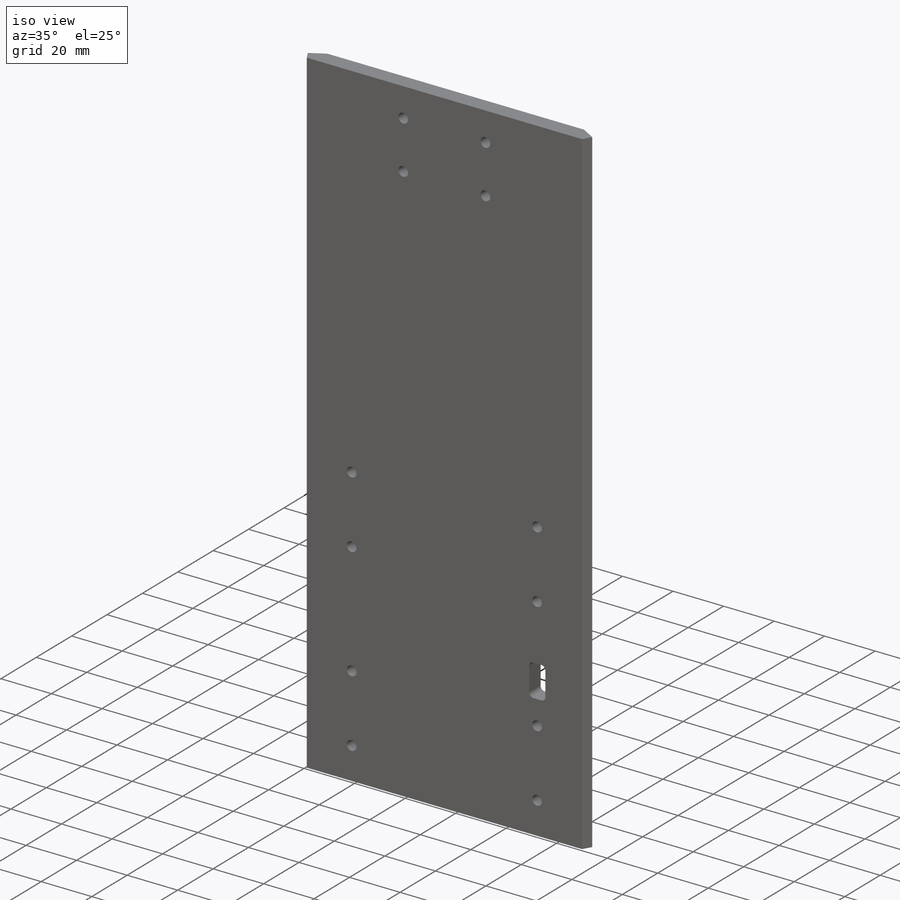
[diagram: iso view]
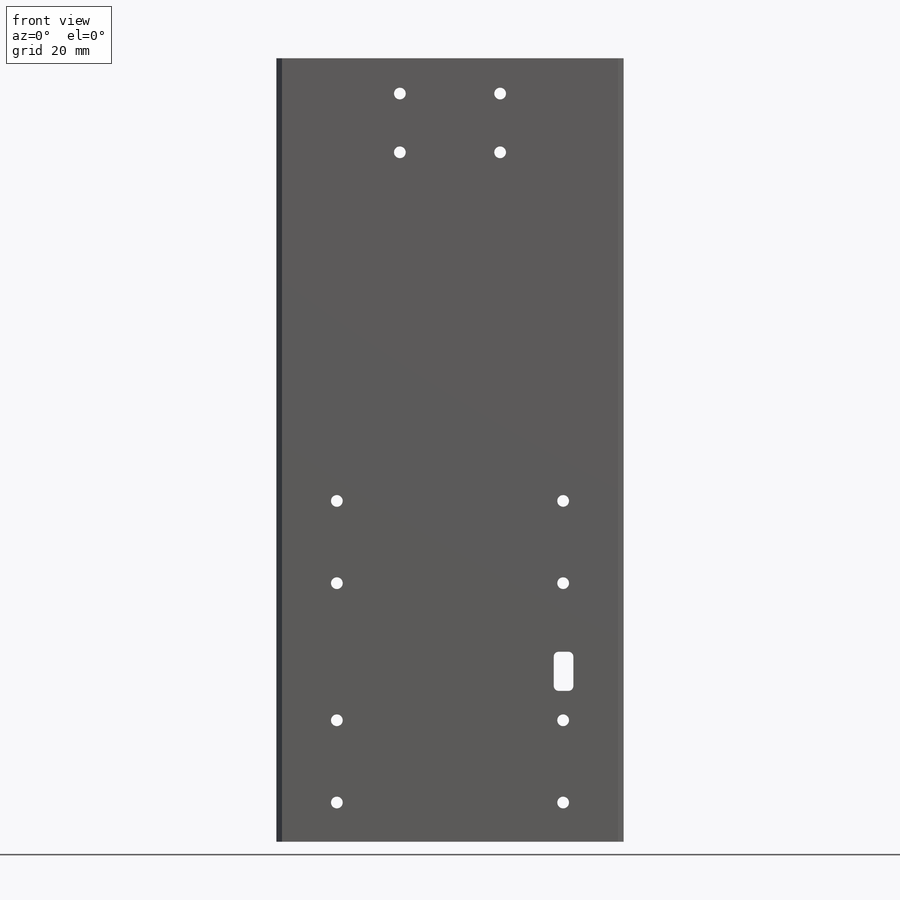
[diagram: front view]
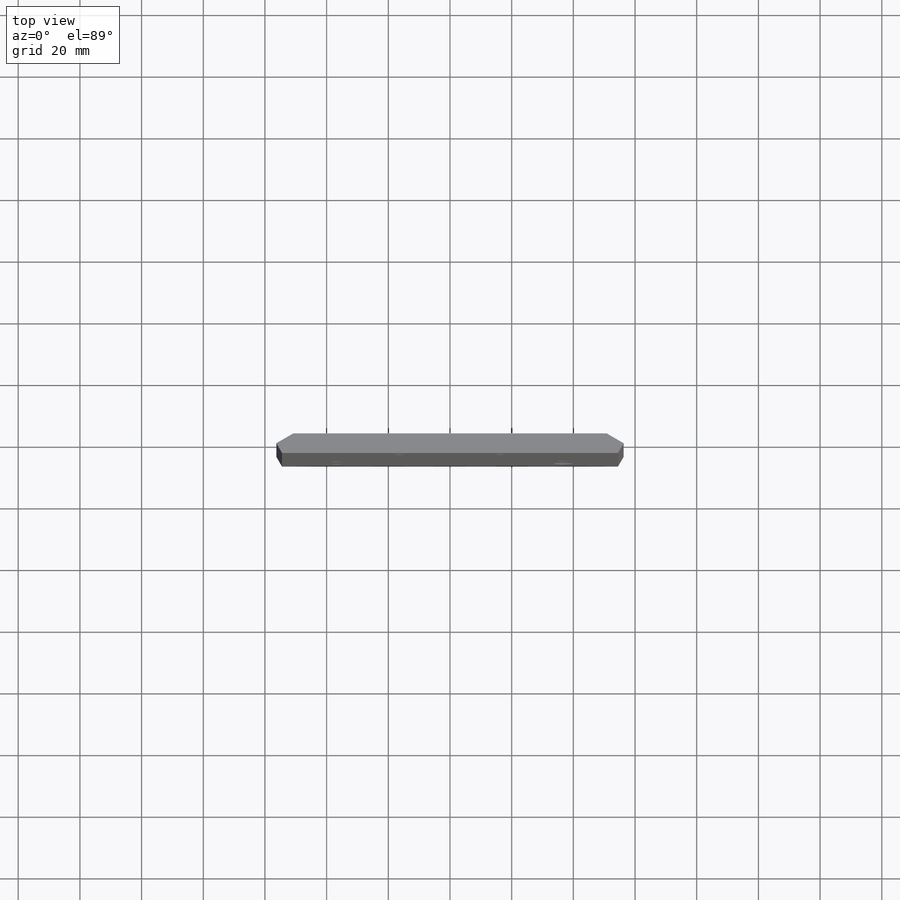
[diagram: top view]
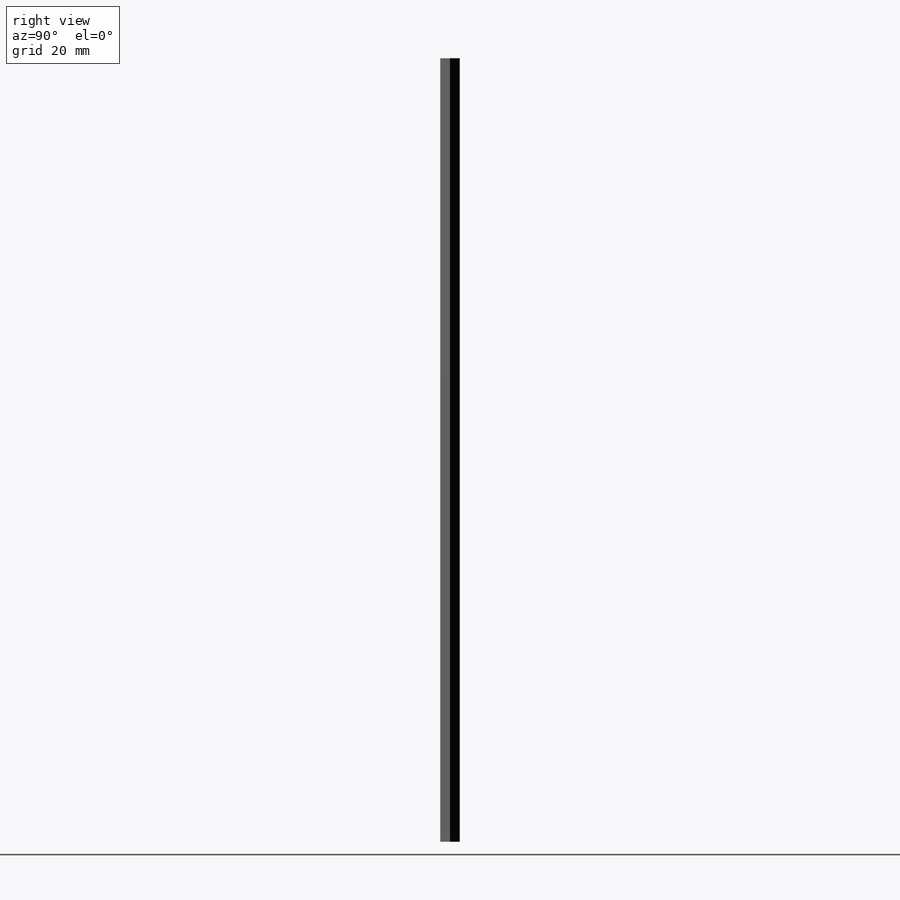
[diagram: right view]
SOLIDWORKS PART (.sldprt)
format: sldprt  version: not decoded by parser v0  size: 330,240 bytes
history: native  units: mm
features: thread x12, sketch x6, cut_extrude x4, extrude x2, material x1, fillet x1 (+13 scaffold rows collapsed)
feature tree (39):
  scaffold x13  (default folders/planes/origin — collapsed)
  material  "6061-T6 (SS)"
  sketch  "Sketch1"  dims[c1.D1=304.8mm c1.D2=101.6mm c2.D1=101.6mm c2.D2=152.4mm c2.D3=101.6mm c2.D4=101.6mm]
  extrude  "Boss-Extrude1"  Depth=6.35mm
  sketch  "Sketch2"  dims[c1.D1=~9.448297mm c2.D1=30.0deg]
  extrude  "Boss-Extrude2"  [1 undecoded]
  sketch  "Sketch4"
  cut_extrude  "Cut-Extrude2"  [1 undecoded]
  sketch  "Sketch5"  dims[c1.D8=3.81mm c1.D1=26.67mm c1.D2=~73.372348mm c1.D3=12.7mm c1.D4=44.45mm c1.D5=~19.638487mm c1.D6=~20.138779mm c2.D5=~19.613087mm c2.D6=~14.113826mm c2.D7=137.16mm c2.D8=16.51mm c2.D9=~50.910174mm c2.D10=~56.409436mm c2.D11=23.495mm c2.D1=26.67mm c2.D2=26.67mm c2.D3=~73.372348mm c2.D4=12.7mm c3.D5=44.45mm c3.D6=17.78mm c3.D7=17.78mm c4.D6=~19.613087mm c4.D7=1.524mm]
  cut_extrude  "Cut-Extrude3"  [1 undecoded]
  thread  "Cosmetic Thread25"  Diameter=4.826mm  [1 undecoded]
  thread  "Cosmetic Thread26"  Diameter=4.826mm  [1 undecoded]
  thread  "Cosmetic Thread27"  Diameter=4.826mm  [1 undecoded]
  thread  "Cosmetic Thread28"  Diameter=4.826mm  [1 undecoded]
  thread  "Cosmetic Thread29"  Diameter=4.826mm  [1 undecoded]
  thread  "Cosmetic Thread30"  Diameter=4.826mm  [1 undecoded]
  thread  "Cosmetic Thread31"  Diameter=4.826mm  [1 undecoded]
  thread  "Cosmetic Thread32"  Diameter=4.826mm  [1 undecoded]
  sketch  "Sketch6"  dims[c1.D1=3.81mm c1.D2=19.05mm c1.D3=32.004mm c1.D4=19.05mm c1.D5=38.1mm c1.D6=11.43mm c2.D3=16.256mm c2.D5=16.256mm]
  cut_extrude  "Cut-Extrude4"  [1 undecoded]
  thread  "Cosmetic Thread33"  Diameter=4.826mm  [1 undecoded]
  thread  "Cosmetic Thread34"  Diameter=4.826mm  [1 undecoded]
  thread  "Cosmetic Thread35"  Diameter=4.826mm  [1 undecoded]
  thread  "Cosmetic Thread36"  Diameter=4.826mm  [1 undecoded]
  sketch  "Sketch9"  dims[D2=1.5875mm D1=0.254mm]
  cut_extrude  "Cut-Extrude5"  [1 undecoded]
  fillet  "Fillet1"  Radius=1.5875mm
decode coverage: 19 of 25 modeling features carry decoded parameters
note: ~ marks probable driven/reference dimensions
note: 17 parameter values undecoded
summary: no parameter record found for 5 features
note: suppression state not decoded; provenance and decode notes live in map.json
